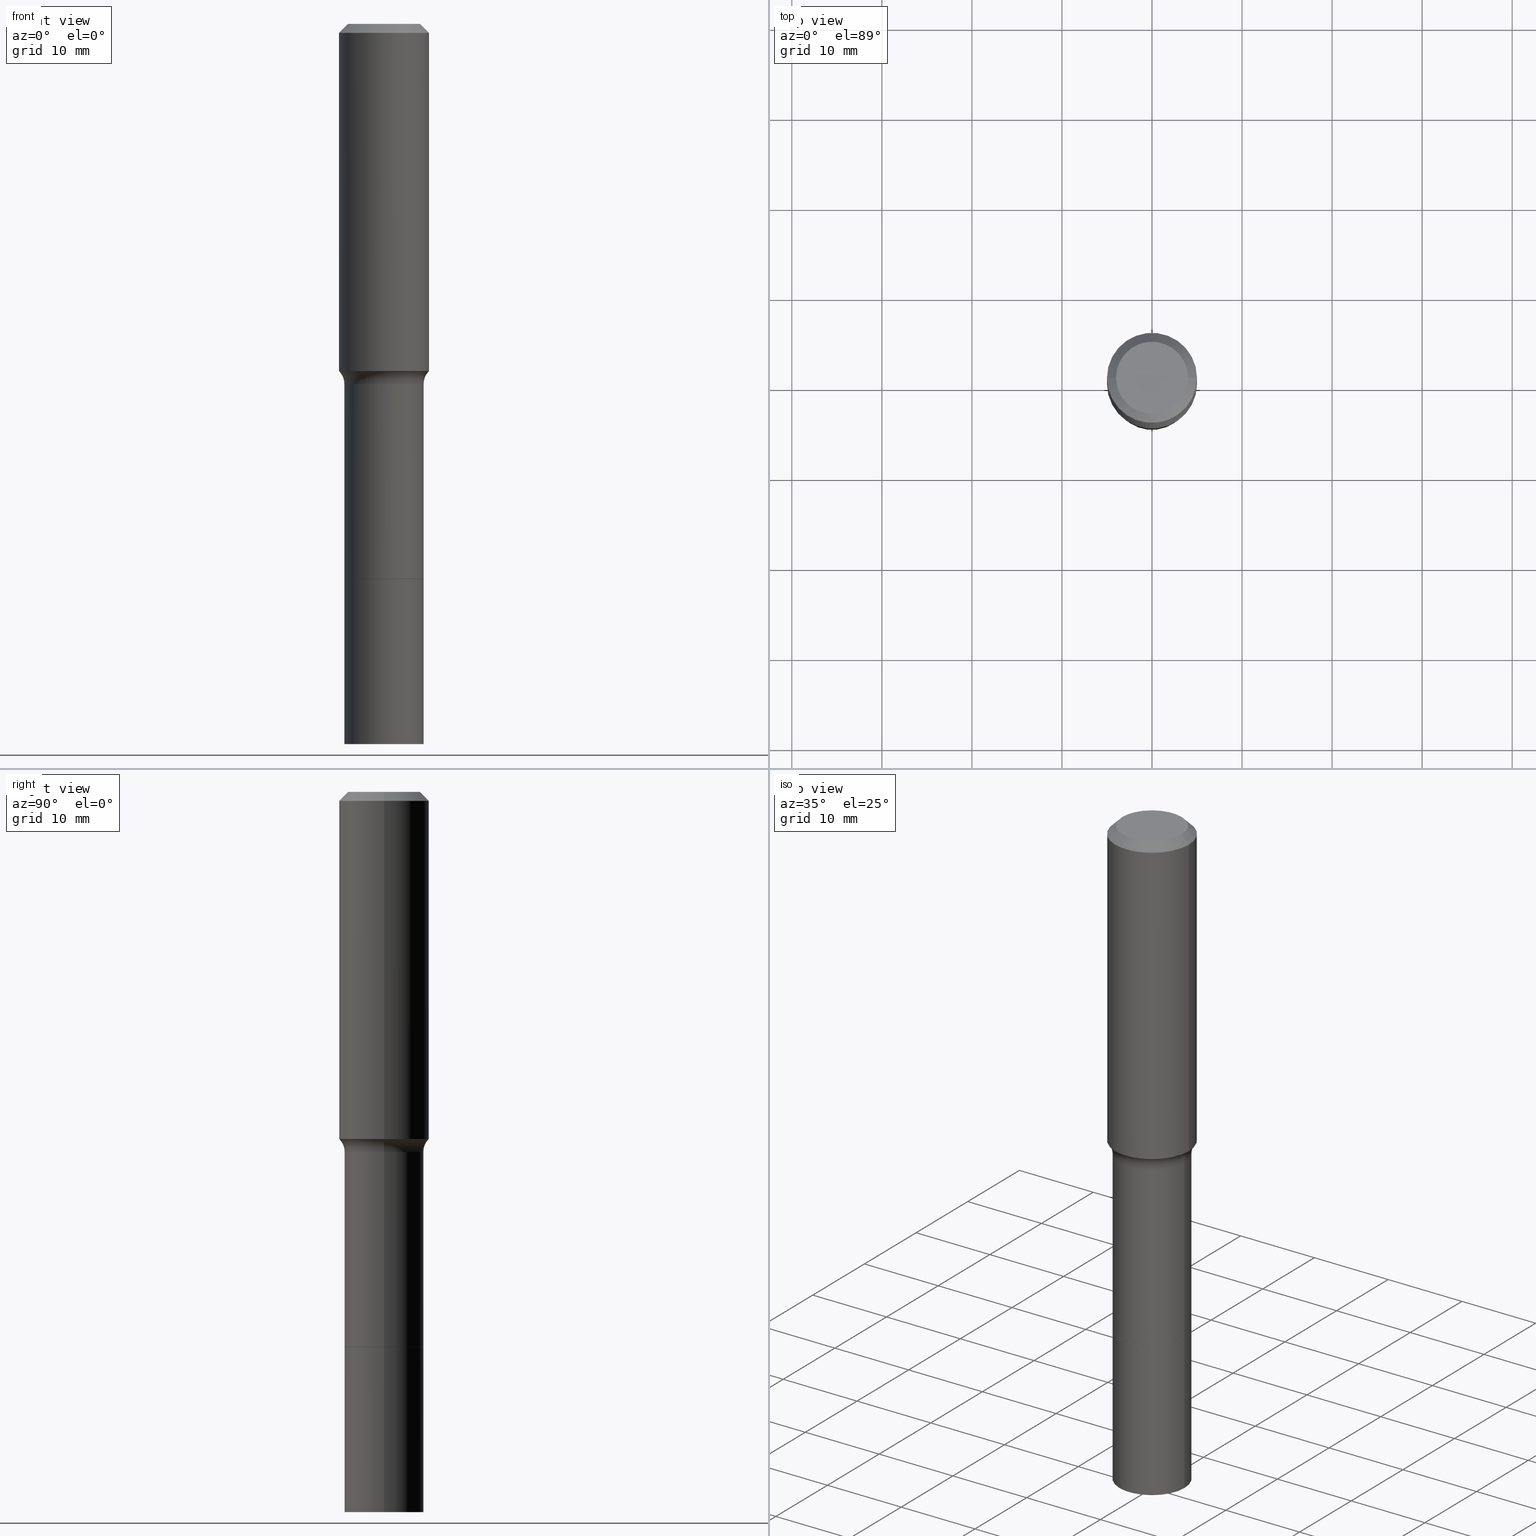
[diagram: canonical four-view strip — front | top / right | iso, engineering-drawing reading convention]
A machine part, canonical four-view strip (front | top / right | iso — engineering-drawing reading convention). The complete STEP part file that produces these views, byte-faithful:
ISO-10303-21;
HEADER;
FILE_DESCRIPTION (( 'STEP AP203' ),
    '1' );
FILE_NAME ('67135.STEP',
    '2025-04-01T15:28:49',
    ( '' ),
    ( '' ),
    'SwSTEP 2.0',
    'SolidWorks 2024',
    '' );
FILE_SCHEMA (( 'CONFIG_CONTROL_DESIGN' ));
ENDSEC;

DATA;
#1 = VERTEX_POINT ( 'NONE', #286 ) ;
#2 = CLOSED_SHELL ( 'NONE', ( #196, #433, #70, #323 ) ) ;
#3 = FACE_OUTER_BOUND ( 'NONE', #153, .T. ) ;
#4 = ORIENTED_EDGE ( 'NONE', *, *, #347, .T. ) ;
#5 = ADVANCED_FACE ( 'NONE', ( #411 ), #449, .T. ) ;
#6 = VERTEX_POINT ( 'NONE', #429 ) ;
#7 = ORIENTED_EDGE ( 'NONE', *, *, #400, .F. ) ;
#8 = CIRCLE ( 'NONE', #252, 0.1732499999999999873 ) ;
#9 = AXIS2_PLACEMENT_3D ( 'NONE', #384, #351, #46 ) ;
#10 = VERTEX_POINT ( 'NONE', #106 ) ;
#11 = AXIS2_PLACEMENT_3D ( 'NONE', #52, #385, #26 ) ;
#12 = DIRECTION ( 'NONE',  ( -2.445468806185136597E-29, 3.491481338843145583E-15, 1.000000000000000000 ) ) ;
#13 = EDGE_LOOP ( 'NONE', ( #110, #496 ) ) ;
#14 = APPROVAL_STATUS ( 'not_yet_approved' ) ;
#15 = CARTESIAN_POINT ( 'NONE',  ( 9.627810689950950651E-31, -1.374596203102556054E-16, -0.03937000000000027977 ) ) ;
#16 =( NAMED_UNIT ( * ) SI_UNIT ( $, .STERADIAN. ) SOLID_ANGLE_UNIT ( ) );
#17 = FACE_OUTER_BOUND ( 'NONE', #516, .T. ) ;
#18 = LINE ( 'NONE', #345, #395 ) ;
#19 = CC_DESIGN_DATE_AND_TIME_ASSIGNMENT ( #254, #369, ( #442 ) ) ;
#20 = DIRECTION ( 'NONE',  ( -2.445468806185136597E-29, 3.491481338843145583E-15, 1.000000000000000000 ) ) ;
#21 = DIRECTION ( 'NONE',  ( 1.000000000000000000, -6.982962677686261189E-15, 0.000000000000000000 ) ) ;
#22 = FACE_OUTER_BOUND ( 'NONE', #471, .T. ) ;
#23 = CARTESIAN_POINT ( 'NONE',  ( 0.000000000000000000, 0.000000000000000000, 0.000000000000000000 ) ) ;
#24 = ADVANCED_BREP_SHAPE_REPRESENTATION ( '67135', ( #74, #176, #11 ), #367 ) ;
#25 = CARTESIAN_POINT ( 'NONE',  ( 0.1574800000000000089, -1.284169937930321189E-15, 3.855188123724205385E-18 ) ) ;
#26 = DIRECTION ( 'NONE',  ( 1.000000000000000000, 0.000000000000000000, 0.000000000000000000 ) ) ;
#27 = CONICAL_SURFACE ( 'NONE', #92, 0.1727499999999999869, 0.7853981633975507526 ) ;
#28 = ADVANCED_FACE ( 'NONE', ( #101 ), #266, .F. ) ;
#29 = DIRECTION ( 'NONE',  ( 2.445468806185136597E-29, -3.491481338843145583E-15, -1.000000000000000000 ) ) ;
#30 = CARTESIAN_POINT ( 'NONE',  ( 5.931729136282667609E-29, -8.468937135497934168E-15, -2.425600000000000200 ) ) ;
#31 = ADVANCED_FACE ( 'NONE', ( #256 ), #71, .T. ) ;
#32 = DIRECTION ( 'NONE',  ( -2.445468806185136597E-29, 3.491481338843145583E-15, 1.000000000000000000 ) ) ;
#33 = VECTOR ( 'NONE', #406, 39.37007874015748143 ) ;
#34 = CIRCLE ( 'NONE', #465, 0.1732500000000001816 ) ;
#35 = EDGE_CURVE ( 'NONE', #10, #251, #8, .T. ) ;
#36 = LOCAL_TIME ( 11, 28, 49.00000000000000000, #342 ) ;
#37 = VERTEX_POINT ( 'NONE', #187 ) ;
#38 = ORIENTED_EDGE ( 'NONE', *, *, #434, .F. ) ;
#39 = CARTESIAN_POINT ( 'NONE',  ( 3.850635182219116347E-29, -5.497686516142417553E-15, -1.574600000000000222 ) ) ;
#40 = ORIENTED_EDGE ( 'NONE', *, *, #55, .F. ) ;
#41 = CARTESIAN_POINT ( 'NONE',  ( 0.000000000000000000, 0.000000000000000000, 0.000000000000000000 ) ) ;
#42 = APPROVAL_DATE_TIME ( #414, #203 ) ;
#43 = ORIENTED_EDGE ( 'NONE', *, *, #354, .F. ) ;
#44 = PERSON_AND_ORGANIZATION ( #90, #116 ) ;
#45 = ADVANCED_FACE ( 'NONE', ( #506 ), #80, .F. ) ;
#46 = DIRECTION ( 'NONE',  ( -1.000000000000000000, 6.982962677686265922E-15, -4.876176775795935793E-29 ) ) ;
#47 = ORIENTED_EDGE ( 'NONE', *, *, #457, .T. ) ;
#48 = CARTESIAN_POINT ( 'NONE',  ( 5.930506401879575929E-29, -8.467191394828513453E-15, -2.425100000000000477 ) ) ;
#49 = APPROVAL_ROLE ( '' ) ;
#50 = CARTESIAN_POINT ( 'NONE',  ( -0.1968500000000001915, -3.900594588805818915E-15, -1.517779260394222174 ) ) ;
#51 = DIRECTION ( 'NONE',  ( -2.445468806185136597E-29, 3.491481338843145583E-15, 1.000000000000000000 ) ) ;
#52 = CARTESIAN_POINT ( 'NONE',  ( 0.000000000000000000, 0.000000000000000000, 0.000000000000000000 ) ) ;
#53 = DIRECTION ( 'NONE',  ( -2.445468806185136597E-29, 3.491481338843145583E-15, 1.000000000000000000 ) ) ;
#54 = DIRECTION ( 'NONE',  ( 1.000000000000000000, -6.982962677686264344E-15, 0.000000000000000000 ) ) ;
#55 = EDGE_CURVE ( 'NONE', #6, #10, #427, .T. ) ;
#56 = AXIS2_PLACEMENT_3D ( 'NONE', #424, #29, #65 ) ;
#57 = EDGE_CURVE ( 'NONE', #517, #366, #285, .T. ) ;
#58 = DIRECTION ( 'NONE',  ( -2.445468806185136597E-29, 3.491481338843145583E-15, 1.000000000000000000 ) ) ;
#59 = DIRECTION ( 'NONE',  ( 1.000000000000000000, -6.982962677686267499E-15, 4.876176775795935793E-29 ) ) ;
#60 = CARTESIAN_POINT ( 'NONE',  ( 9.627810689950950651E-31, -1.374596203102556054E-16, -0.03937000000000027977 ) ) ;
#61 = DIRECTION ( 'NONE',  ( -2.445468806185136877E-29, 3.491481338843145188E-15, 1.000000000000000000 ) ) ;
#62 = DIRECTION ( 'NONE',  ( 1.000000000000000000, -6.982962677686265133E-15, 4.883557194083112340E-29 ) ) ;
#63 = PERSON_AND_ORGANIZATION_ROLE ( 'creator' ) ;
#64 = LINE ( 'NONE', #298, #190 ) ;
#65 = DIRECTION ( 'NONE',  ( -1.000000000000000000, 6.982962677686265922E-15, 0.000000000000000000 ) ) ;
#66 = AXIS2_PLACEMENT_3D ( 'NONE', #229, #391, #191 ) ;
#67 = LINE ( 'NONE', #194, #488 ) ;
#68 = ADVANCED_FACE ( 'NONE', ( #219 ), #103, .T. ) ;
#69 = ORIENTED_EDGE ( 'NONE', *, *, #477, .F. ) ;
#70 = ADVANCED_FACE ( 'NONE', ( #145 ), #315, .T. ) ;
#71 = CONICAL_SURFACE ( 'NONE', #56, 0.1968500000000000250, 0.7853981633974447263 ) ;
#72 = AXIS2_PLACEMENT_3D ( 'NONE', #177, #501, #139 ) ;
#73 = VERTEX_POINT ( 'NONE', #25 ) ;
#74 = MANIFOLD_SOLID_BREP ( 'Body-Move/Copy2[1]', #2 ) ;
#75 = DIRECTION ( 'NONE',  ( 1.000000000000000000, -6.982962677686264344E-15, 0.000000000000000000 ) ) ;
#76 = CARTESIAN_POINT ( 'NONE',  ( 3.717210724986936016E-29, -5.307191752360030282E-15, -1.520040131195000255 ) ) ;
#77 = EDGE_CURVE ( 'NONE', #1, #489, #447, .T. ) ;
#78 = ORIENTED_EDGE ( 'NONE', *, *, #245, .F. ) ;
#79 = ORIENTED_EDGE ( 'NONE', *, *, #77, .F. ) ;
#80 = TOROIDAL_SURFACE ( 'NONE', #371, 0.2532499999999998641, 0.07999999999999996003 ) ;
#81 = CARTESIAN_POINT ( 'NONE',  ( 3.717210724986936016E-29, -5.307191752360030282E-15, -1.520040131195000255 ) ) ;
#82 = VERTEX_POINT ( 'NONE', #306 ) ;
#83 = PRODUCT_DEFINITION_FORMATION_WITH_SPECIFIED_SOURCE ( 'ANY', '', #326, .NOT_KNOWN. ) ;
#84 = VECTOR ( 'NONE', #269, 39.37007874015748143 ) ;
#85 = ADVANCED_FACE ( 'NONE', ( #131 ), #300, .F. ) ;
#86 = CARTESIAN_POINT ( 'NONE',  ( 3.711681835968817620E-29, -5.299297964149577492E-15, -1.517779260394222174 ) ) ;
#87 = ORIENTED_EDGE ( 'NONE', *, *, #162, .F. ) ;
#88 = DIRECTION ( 'NONE',  ( -2.445468806185136597E-29, 3.491481338843145583E-15, 1.000000000000000000 ) ) ;
#89 = ORIENTED_EDGE ( 'NONE', *, *, #313, .T. ) ;
#90 = PERSON ( 'UNSPECIFIED', 'UNSPECIFIED', 'UNSPECIFIED', ('UNSPECIFIED'), ('UNSPECIFIED'), ('UNSPECIFIED') ) ;
#91 = PERSON_AND_ORGANIZATION_ROLE ( 'classification_officer' ) ;
#92 = AXIS2_PLACEMENT_3D ( 'NONE', #30, #193, #418 ) ;
#93 = CARTESIAN_POINT ( 'NONE',  ( -0.1727499999999999869, -7.238825332298250975E-15, -2.425600000000000200 ) ) ;
#94 = EDGE_LOOP ( 'NONE', ( #356, #361 ) ) ;
#95 = SECURITY_CLASSIFICATION_LEVEL ( 'unclassified' ) ;
#96 = DIRECTION ( 'NONE',  ( -2.445468806185136597E-29, 3.491481338843145583E-15, 1.000000000000000000 ) ) ;
#97 = CALENDAR_DATE ( 2025, 1, 4 ) ;
#98 = EDGE_CURVE ( 'NONE', #407, #359, #18, .T. ) ;
#99 = UNCERTAINTY_MEASURE_WITH_UNIT (LENGTH_MEASURE( 1.000000000000000082E-05 ), #493, 'distance_accuracy_value', 'NONE');
#100 = CARTESIAN_POINT ( 'NONE',  ( -0.1732500000000001816, -8.501838090454777193E-15, -3.149600000000000399 ) ) ;
#101 = FACE_OUTER_BOUND ( 'NONE', #94, .T. ) ;
#102 = CARTESIAN_POINT ( 'NONE',  ( -0.1732499999999999873, -8.501838090454778770E-15, -2.425600000000000200 ) ) ;
#103 = CONICAL_SURFACE ( 'NONE', #122, 0.1727499999999999869, 0.7853981633975507526 ) ;
#104 = CIRCLE ( 'NONE', #335, 0.1968500000000001915 ) ;
#105 = CYLINDRICAL_SURFACE ( 'NONE', #146, 0.1968500000000001082 ) ;
#106 = CARTESIAN_POINT ( 'NONE',  ( 0.1732499999999999873, -9.678735419407081106E-15, -2.425600000000000200 ) ) ;
#107 = APPROVAL_PERSON_ORGANIZATION ( #409, #203, #49 ) ;
#108 = CARTESIAN_POINT ( 'NONE',  ( -0.1732499999999999318, 1.231015289704373088E-15, -8.522055043866620619E-30 ) ) ;
#109 = CARTESIAN_POINT ( 'NONE',  ( 7.702248551960706711E-29, -1.099676962482037231E-14, -3.149600000000000399 ) ) ;
#110 = ORIENTED_EDGE ( 'NONE', *, *, #35, .T. ) ;
#111 = CC_DESIGN_PERSON_AND_ORGANIZATION_ASSIGNMENT ( #302, #91, ( #442 ) ) ;
#112 = ORIENTED_EDGE ( 'NONE', *, *, #282, .T. ) ;
#113 = ORIENTED_EDGE ( 'NONE', *, *, #170, .F. ) ;
#114 = CIRCLE ( 'NONE', #297, 0.1968500000000000250 ) ;
#115 = ORIENTED_EDGE ( 'NONE', *, *, #55, .T. ) ;
#116 = ORGANIZATION ( 'UNSPECIFIED', 'UNSPECIFIED', '' ) ;
#117 = AXIS2_PLACEMENT_3D ( 'NONE', #130, #421, #218 ) ;
#118 = ORIENTED_EDGE ( 'NONE', *, *, #330, .T. ) ;
#119 = ADVANCED_FACE ( 'NONE', ( #264 ), #304, .T. ) ;
#120 = ORIENTED_EDGE ( 'NONE', *, *, #57, .T. ) ;
#121 = COORDINATED_UNIVERSAL_TIME_OFFSET ( 5, 0, .BEHIND. ) ;
#122 = AXIS2_PLACEMENT_3D ( 'NONE', #311, #341, #21 ) ;
#123 = APPROVAL ( #417, 'UNSPECIFIED' ) ;
#124 = ORIENTED_EDGE ( 'NONE', *, *, #438, .T. ) ;
#125 = ORIENTED_EDGE ( 'NONE', *, *, #137, .F. ) ;
#126 = DATE_AND_TIME ( #167, #36 ) ;
#127 = LINE ( 'NONE', #454, #235 ) ;
#128 = EDGE_LOOP ( 'NONE', ( #278, #4 ) ) ;
#129 = DATE_TIME_ROLE ( 'creation_date' ) ;
#130 = CARTESIAN_POINT ( 'NONE',  ( 7.702248551960706711E-29, -1.099676962482037231E-14, -3.149600000000000399 ) ) ;
#131 = FACE_OUTER_BOUND ( 'NONE', #128, .T. ) ;
#132 = PERSON_AND_ORGANIZATION_ROLE ( 'creator' ) ;
#133 = CC_DESIGN_PERSON_AND_ORGANIZATION_ASSIGNMENT ( #44, #132, ( #83 ) ) ;
#134 = LINE ( 'NONE', #509, #160 ) ;
#135 = CARTESIAN_POINT ( 'NONE',  ( 5.930506401879575929E-29, -8.467191394828513453E-15, -2.425100000000000477 ) ) ;
#136 = CARTESIAN_POINT ( 'NONE',  ( 0.2532499999999998641, -7.266121814266463777E-15, -1.574600000000000222 ) ) ;
#137 = EDGE_CURVE ( 'NONE', #359, #320, #114, .T. ) ;
#138 = DIRECTION ( 'NONE',  ( -2.445468806185136597E-29, 3.491481338843145583E-15, 1.000000000000000000 ) ) ;
#139 = DIRECTION ( 'NONE',  ( 1.000000000000000000, -6.982962677686265922E-15, 4.876223630392693006E-29 ) ) ;
#140 = CC_DESIGN_PERSON_AND_ORGANIZATION_ASSIGNMENT ( #307, #63, ( #463 ) ) ;
#141 = CARTESIAN_POINT ( 'NONE',  ( 3.717210724986936016E-29, -5.307191752360030282E-15, -1.520040131195000255 ) ) ;
#142 = CARTESIAN_POINT ( 'NONE',  ( 5.931729136282667609E-29, -8.468937135497934168E-15, -2.425600000000000200 ) ) ;
#143 = LOCAL_TIME ( 11, 28, 49.00000000000000000, #383 ) ;
#144 = DIRECTION ( 'NONE',  ( -2.445468806185136597E-29, 3.491481338843145583E-15, 1.000000000000000000 ) ) ;
#145 = FACE_OUTER_BOUND ( 'NONE', #324, .T. ) ;
#146 = AXIS2_PLACEMENT_3D ( 'NONE', #23, #12, #348 ) ;
#147 = ORIENTED_EDGE ( 'NONE', *, *, #434, .T. ) ;
#148 = ADVANCED_FACE ( 'NONE', ( #430 ), #425, .T. ) ;
#149 = AXIS2_PLACEMENT_3D ( 'NONE', #462, #260, #221 ) ;
#150 = CIRCLE ( 'NONE', #154, 0.07999999999999996003 ) ;
#151 = ORIENTED_EDGE ( 'NONE', *, *, #35, .F. ) ;
#152 = CC_DESIGN_PERSON_AND_ORGANIZATION_ASSIGNMENT ( #500, #182, ( #326 ) ) ;
#153 = EDGE_LOOP ( 'NONE', ( #450, #118, #151, #40 ) ) ;
#154 = AXIS2_PLACEMENT_3D ( 'NONE', #343, #502, #255 ) ;
#155 = LINE ( 'NONE', #241, #33 ) ;
#156 = CARTESIAN_POINT ( 'NONE',  ( 0.1732499999999999873, -9.676989678737658813E-15, -2.425100000000000477 ) ) ;
#157 = ORIENTED_EDGE ( 'NONE', *, *, #347, .F. ) ;
#158 = PRODUCT_DEFINITION_SHAPE ( 'NONE', 'NONE',  #463 ) ;
#159 = ORIENTED_EDGE ( 'NONE', *, *, #477, .T. ) ;
#160 = VECTOR ( 'NONE', #61, 39.37007874015748143 ) ;
#161 = ORIENTED_EDGE ( 'NONE', *, *, #330, .F. ) ;
#162 = EDGE_CURVE ( 'NONE', #432, #407, #67, .T. ) ;
#163 = ORIENTED_EDGE ( 'NONE', *, *, #172, .F. ) ;
#164 = PERSON_AND_ORGANIZATION_ROLE ( 'design_supplier' ) ;
#165 = CIRCLE ( 'NONE', #309, 0.1574800000000000089 ) ;
#166 = ORIENTED_EDGE ( 'NONE', *, *, #494, .T. ) ;
#167 = CALENDAR_DATE ( 2025, 1, 4 ) ;
#168 = CARTESIAN_POINT ( 'NONE',  ( 0.1947417038704663539, -6.667065802276527587E-15, -1.520040131195000255 ) ) ;
#169 = ORIENTED_EDGE ( 'NONE', *, *, #98, .F. ) ;
#170 = EDGE_CURVE ( 'NONE', #37, #82, #198, .T. ) ;
#171 = CALENDAR_DATE ( 2025, 1, 4 ) ;
#172 = EDGE_CURVE ( 'NONE', #517, #489, #155, .T. ) ;
#173 = CARTESIAN_POINT ( 'NONE',  ( -0.1947417038704663539, -3.923468722012986135E-15, -1.520040131195000255 ) ) ;
#174 = DIRECTION ( 'NONE',  ( 1.000000000000000000, -6.982962677686261189E-15, 0.000000000000000000 ) ) ;
#175 = APPROVAL_ROLE ( '' ) ;
#176 = MANIFOLD_SOLID_BREP ( 'Body-Move/Copy2[2]', #470 ) ;
#177 = CARTESIAN_POINT ( 'NONE',  ( -9.427742298522567634E-47, 1.346031739168368355E-32, 3.855188123715870730E-18 ) ) ;
#178 = CARTESIAN_POINT ( 'NONE',  ( 0.1968500000000000250, -1.512055823412797189E-15, -0.03937000000000027977 ) ) ;
#179 = CARTESIAN_POINT ( 'NONE',  ( 5.931729136282667609E-29, -8.468937135497934168E-15, -2.425600000000000200 ) ) ;
#180 = CARTESIAN_POINT ( 'NONE',  ( 0.1947417038704664649, -6.667065802276528376E-15, -1.520040131195000255 ) ) ;
#181 = CARTESIAN_POINT ( 'NONE',  ( 5.931729136282667609E-29, -8.468937135497934168E-15, -2.425600000000000200 ) ) ;
#182 = PERSON_AND_ORGANIZATION_ROLE ( 'design_owner' ) ;
#183 = AXIS2_PLACEMENT_3D ( 'NONE', #505, #20, #54 ) ;
#184 = AXIS2_PLACEMENT_3D ( 'NONE', #141, #310, #358 ) ;
#185 = EDGE_CURVE ( 'NONE', #366, #517, #382, .T. ) ;
#186 = FACE_OUTER_BOUND ( 'NONE', #446, .T. ) ;
#187 = CARTESIAN_POINT ( 'NONE',  ( 0.1732499999999998763, -6.707484800051562914E-15, -1.574600000000000222 ) ) ;
#188 = LENGTH_MEASURE_WITH_UNIT ( LENGTH_MEASURE( 0.02539999999999999897 ), #204 );
#189 = CIRCLE ( 'NONE', #265, 0.1947417038704664649 ) ;
#190 = VECTOR ( 'NONE', #353, 39.37007874015748143 ) ;
#191 = DIRECTION ( 'NONE',  ( -1.000000000000000000, 6.982962677686265922E-15, 0.000000000000000000 ) ) ;
#192 = DIRECTION ( 'NONE',  ( -2.445468806185136877E-29, 3.491481338843145188E-15, 1.000000000000000000 ) ) ;
#193 = DIRECTION ( 'NONE',  ( -2.445468806185136597E-29, 3.491481338843145583E-15, 1.000000000000000000 ) ) ;
#194 = CARTESIAN_POINT ( 'NONE',  ( -0.1947417038704664649, -3.923468722012985346E-15, -1.520040131195000255 ) ) ;
#195 = ORIENTED_EDGE ( 'NONE', *, *, #170, .T. ) ;
#196 = ADVANCED_FACE ( 'NONE', ( #3 ), #274, .T. ) ;
#197 = ORIENTED_EDGE ( 'NONE', *, *, #316, .F. ) ;
#198 = CIRCLE ( 'NONE', #431, 0.1732499999999998763 ) ;
#199 = CC_DESIGN_APPROVAL ( #291, ( #463 ) ) ;
#200 = ADVANCED_FACE ( 'NONE', ( #439 ), #213, .T. ) ;
#201 = CARTESIAN_POINT ( 'NONE',  ( -0.1574800000000000089, 1.168406772637159618E-15, 3.855188123707939751E-18 ) ) ;
#202 = ORIENTED_EDGE ( 'NONE', *, *, #360, .F. ) ;
#203 = APPROVAL ( #485, 'UNSPECIFIED' ) ;
#204 =( LENGTH_UNIT ( ) NAMED_UNIT ( * ) SI_UNIT ( $, .METRE. ) );
#205 = EDGE_LOOP ( 'NONE', ( #394, #47, #113, #202 ) ) ;
#206 = ORIENTED_EDGE ( 'NONE', *, *, #245, .T. ) ;
#207 = CALENDAR_DATE ( 2025, 1, 4 ) ;
#208 = AXIS2_PLACEMENT_3D ( 'NONE', #15, #458, #377 ) ;
#209 = DIRECTION ( 'NONE',  ( -2.445468806185136597E-29, 3.491481338843145583E-15, 1.000000000000000000 ) ) ;
#210 = SHAPE_DEFINITION_REPRESENTATION ( #158, #24 ) ;
#211 = DIRECTION ( 'NONE',  ( 1.000000000000000000, -6.982962677686266711E-15, 0.000000000000000000 ) ) ;
#212 = ORIENTED_EDGE ( 'NONE', *, *, #258, .T. ) ;
#213 = CONICAL_SURFACE ( 'NONE', #328, 0.1947417038704664649, 0.7504915783575295540 ) ;
#214 = EDGE_LOOP ( 'NONE', ( #87, #281, #232, #69 ) ) ;
#215 = FACE_OUTER_BOUND ( 'NONE', #13, .T. ) ;
#216 = CARTESIAN_POINT ( 'NONE',  ( 5.931729136282667609E-29, -8.468937135497934168E-15, -2.425600000000000200 ) ) ;
#217 = APPLICATION_PROTOCOL_DEFINITION ( 'international standard', 'config_control_design', 1994, #363 ) ;
#218 = DIRECTION ( 'NONE',  ( -1.000000000000000000, 6.982962677686265922E-15, -4.876176775795935793E-29 ) ) ;
#219 = FACE_OUTER_BOUND ( 'NONE', #277, .T. ) ;
#220 = AXIS2_PLACEMENT_3D ( 'NONE', #135, #466, #468 ) ;
#221 = DIRECTION ( 'NONE',  ( 1.000000000000000000, -6.982962677686266711E-15, 4.876176775795935793E-29 ) ) ;
#222 = CC_DESIGN_DATE_AND_TIME_ASSIGNMENT ( #497, #129, ( #463 ) ) ;
#223 = MECHANICAL_CONTEXT ( 'NONE', #363, 'mechanical' ) ;
#224 = CARTESIAN_POINT ( 'NONE',  ( -0.1727499999999999869, -7.241474559472361387E-15, -2.425600000000000200 ) ) ;
#225 = DIRECTION ( 'NONE',  ( -2.445468806185136877E-29, 3.491481338843145188E-15, 1.000000000000000000 ) ) ;
#226 = APPROVAL_DATE_TIME ( #253, #291 ) ;
#227 = AXIS2_PLACEMENT_3D ( 'NONE', #303, #88, #415 ) ;
#228 = DIRECTION ( 'NONE',  ( -2.445468806185136597E-29, 3.491481338843145583E-15, 1.000000000000000000 ) ) ;
#229 = CARTESIAN_POINT ( 'NONE',  ( 9.627810689950950651E-31, -1.374596203102556054E-16, -0.03937000000000027977 ) ) ;
#230 = CC_DESIGN_SECURITY_CLASSIFICATION ( #442, ( #83 ) ) ;
#231 = PRODUCT_RELATED_PRODUCT_CATEGORY ( 'detail', '', ( #326 ) ) ;
#232 = ORIENTED_EDGE ( 'NONE', *, *, #322, .T. ) ;
#233 = AXIS2_PLACEMENT_3D ( 'NONE', #181, #96, #387 ) ;
#234 = DIRECTION ( 'NONE',  ( -2.445468806185136597E-29, 3.491481338843145583E-15, 1.000000000000000000 ) ) ;
#235 = VECTOR ( 'NONE', #225, 39.37007874015748143 ) ;
#236 = DIRECTION ( 'NONE',  ( 1.000000000000000000, -6.982962677686265133E-15, 0.000000000000000000 ) ) ;
#237 = ORIENTED_EDGE ( 'NONE', *, *, #282, .F. ) ;
#238 = CC_DESIGN_APPROVAL ( #123, ( #83 ) ) ;
#239 = DIRECTION ( 'NONE',  ( 1.000000000000000000, -6.982962677686269866E-15, 0.000000000000000000 ) ) ;
#240 = CARTESIAN_POINT ( 'NONE',  ( 0.1727499999999999869, -9.675243938068236521E-15, -2.425600000000000200 ) ) ;
#241 = CARTESIAN_POINT ( 'NONE',  ( 0.1727499999999999869, -9.675243938068236521E-15, -2.425600000000000200 ) ) ;
#242 = ORIENTED_EDGE ( 'NONE', *, *, #438, .F. ) ;
#243 = AXIS2_PLACEMENT_3D ( 'NONE', #257, #459, #422 ) ;
#244 = ORIENTED_EDGE ( 'NONE', *, *, #316, .T. ) ;
#245 = EDGE_CURVE ( 'NONE', #82, #37, #334, .T. ) ;
#246 = ORIENTED_EDGE ( 'NONE', *, *, #494, .F. ) ;
#247 = APPROVAL_DATE_TIME ( #126, #123 ) ;
#248 = CIRCLE ( 'NONE', #208, 0.1968500000000000250 ) ;
#249 = VERTEX_POINT ( 'NONE', #504 ) ;
#250 = CYLINDRICAL_SURFACE ( 'NONE', #290, 0.1732499999999999318 ) ;
#251 = VERTEX_POINT ( 'NONE', #102 ) ;
#252 = AXIS2_PLACEMENT_3D ( 'NONE', #142, #138, #416 ) ;
#253 = DATE_AND_TIME ( #293, #143 ) ;
#254 = DATE_AND_TIME ( #97, #393 ) ;
#255 = DIRECTION ( 'NONE',  ( -1.000000000000000000, 7.105427357601001859E-15, 0.000000000000000000 ) ) ;
#256 = FACE_OUTER_BOUND ( 'NONE', #478, .T. ) ;
#257 = CARTESIAN_POINT ( 'NONE',  ( -4.713871149261283817E-47, 6.730158695841841775E-33, 1.927594061857935365E-18 ) ) ;
#258 = EDGE_CURVE ( 'NONE', #249, #320, #64, .T. ) ;
#259 = PLANE ( 'NONE',  #9 ) ;
#260 = DIRECTION ( 'NONE',  ( -2.445468806185136597E-29, 3.491481338843145583E-15, 1.000000000000000000 ) ) ;
#261 = AXIS2_PLACEMENT_3D ( 'NONE', #179, #499, #174 ) ;
#262 = CIRCLE ( 'NONE', #372, 0.1732499999999999873 ) ;
#263 = DIRECTION ( 'NONE',  ( 0.7071067811865450192, -7.319954787623246579E-15, -0.7071067811865500152 ) ) ;
#264 = FACE_OUTER_BOUND ( 'NONE', #482, .T. ) ;
#265 = AXIS2_PLACEMENT_3D ( 'NONE', #76, #518, #325 ) ;
#266 = PLANE ( 'NONE',  #437 ) ;
#267 = EDGE_CURVE ( 'NONE', #251, #10, #275, .T. ) ;
#268 = DIRECTION ( 'NONE',  ( 1.000000000000000000, -6.982962677686265922E-15, 0.000000000000000000 ) ) ;
#269 = DIRECTION ( 'NONE',  ( -2.445468806185136877E-29, 3.491481338843145188E-15, 1.000000000000000000 ) ) ;
#270 = ADVANCED_FACE ( 'NONE', ( #22 ), #27, .T. ) ;
#271 = AXIS2_PLACEMENT_3D ( 'NONE', #511, #228, #467 ) ;
#272 = ORIENTED_EDGE ( 'NONE', *, *, #77, .T. ) ;
#273 = CIRCLE ( 'NONE', #184, 0.1947417038704664649 ) ;
#274 = CYLINDRICAL_SURFACE ( 'NONE', #515, 0.1732500000000000984 ) ;
#275 = CIRCLE ( 'NONE', #271, 0.1732499999999999873 ) ;
#276 = CARTESIAN_POINT ( 'NONE',  ( -0.1968500000000000250, 1.237136582792286225E-15, -0.03937000000000027977 ) ) ;
#277 = EDGE_LOOP ( 'NONE', ( #120, #112, #472, #163 ) ) ;
#278 = ORIENTED_EDGE ( 'NONE', *, *, #283, .T. ) ;
#279 = CIRCLE ( 'NONE', #420, 0.07999999999999996003 ) ;
#280 = DIRECTION ( 'NONE',  ( -2.445468806185136597E-29, 3.491481338843145583E-15, 1.000000000000000000 ) ) ;
#281 = ORIENTED_EDGE ( 'NONE', *, *, #441, .T. ) ;
#282 = EDGE_CURVE ( 'NONE', #366, #1, #380, .T. ) ;
#283 = EDGE_CURVE ( 'NONE', #292, #73, #479, .T. ) ;
#284 = CARTESIAN_POINT ( 'NONE',  ( 5.931729136282667609E-29, -8.468937135497934168E-15, -2.425600000000000200 ) ) ;
#285 = CIRCLE ( 'NONE', #261, 0.1727499999999999869 ) ;
#286 = CARTESIAN_POINT ( 'NONE',  ( -0.1732499999999999873, -5.751423665781092218E-15, -2.425100000000000477 ) ) ;
#287 = ORIENTED_EDGE ( 'NONE', *, *, #512, .T. ) ;
#288 = EDGE_CURVE ( 'NONE', #489, #1, #262, .T. ) ;
#289 = CIRCLE ( 'NONE', #355, 0.1968500000000001915 ) ;
#290 = AXIS2_PLACEMENT_3D ( 'NONE', #340, #412, #338 ) ;
#291 = APPROVAL ( #14, 'UNSPECIFIED' ) ;
#292 = VERTEX_POINT ( 'NONE', #201 ) ;
#293 = CALENDAR_DATE ( 2025, 1, 4 ) ;
#294 = PERSON_AND_ORGANIZATION ( #90, #116 ) ;
#295 = CARTESIAN_POINT ( 'NONE',  ( -0.1968500000000000250, -1.319675416886158354E-15, -0.03937000000000027977 ) ) ;
#296 = EDGE_LOOP ( 'NONE', ( #242, #455, #166, #370 ) ) ;
#297 = AXIS2_PLACEMENT_3D ( 'NONE', #60, #53, #268 ) ;
#298 = CARTESIAN_POINT ( 'NONE',  ( 0.1968500000000001082, -1.374596203102542397E-15, 9.598753983154305062E-30 ) ) ;
#299 = FACE_OUTER_BOUND ( 'NONE', #214, .T. ) ;
#300 = PLANE ( 'NONE',  #243 ) ;
#301 = PERSON_AND_ORGANIZATION ( #90, #116 ) ;
#302 = PERSON_AND_ORGANIZATION ( #90, #116 ) ;
#303 = CARTESIAN_POINT ( 'NONE',  ( 3.850635182219116347E-29, -5.497686516142417553E-15, -1.574600000000000222 ) ) ;
#304 = CYLINDRICAL_SURFACE ( 'NONE', #149, 0.1968500000000001082 ) ;
#305 = LINE ( 'NONE', #423, #483 ) ;
#306 = CARTESIAN_POINT ( 'NONE',  ( -0.1732499999999998763, -5.751423665781093007E-15, -1.574600000000000222 ) ) ;
#307 = PERSON_AND_ORGANIZATION ( #90, #116 ) ;
#308 = AXIS2_PLACEMENT_3D ( 'NONE', #41, #209, #59 ) ;
#309 = AXIS2_PLACEMENT_3D ( 'NONE', #374, #58, #386 ) ;
#310 = DIRECTION ( 'NONE',  ( -2.445468806185136597E-29, 3.491481338843145583E-15, 1.000000000000000000 ) ) ;
#311 = CARTESIAN_POINT ( 'NONE',  ( 5.931729136282667609E-29, -8.468937135497934168E-15, -2.425600000000000200 ) ) ;
#312 = LOCAL_TIME ( 11, 28, 49.00000000000000000, #376 ) ;
#313 = EDGE_CURVE ( 'NONE', #435, #6, #34, .T. ) ;
#314 = LINE ( 'NONE', #108, #84 ) ;
#315 = CYLINDRICAL_SURFACE ( 'NONE', #233, 0.1732500000000000984 ) ;
#316 = EDGE_CURVE ( 'NONE', #249, #407, #104, .T. ) ;
#317 = CONICAL_SURFACE ( 'NONE', #183, 0.1947417038704664649, 0.7504915783575295540 ) ;
#318 = DIRECTION ( 'NONE',  ( 1.000000000000000000, -6.982962677686267499E-15, 0.000000000000000000 ) ) ;
#319 = VERTEX_POINT ( 'NONE', #168 ) ;
#320 = VERTEX_POINT ( 'NONE', #178 ) ;
#321 = APPROVAL_PERSON_ORGANIZATION ( #301, #291, #507 ) ;
#322 = EDGE_CURVE ( 'NONE', #319, #249, #426, .T. ) ;
#323 = ADVANCED_FACE ( 'NONE', ( #215 ), #259, .F. ) ;
#324 = EDGE_LOOP ( 'NONE', ( #161, #89, #115, #398 ) ) ;
#325 = DIRECTION ( 'NONE',  ( 1.000000000000000000, -6.982962677686264344E-15, 0.000000000000000000 ) ) ;
#326 = PRODUCT ( '67135', '67135', '', ( #223 ) ) ;
#327 = ORIENTED_EDGE ( 'NONE', *, *, #448, .F. ) ;
#328 = AXIS2_PLACEMENT_3D ( 'NONE', #81, #445, #75 ) ;
#329 = CARTESIAN_POINT ( 'NONE',  ( 5.931729136282667609E-29, -8.468937135497934168E-15, -2.425600000000000200 ) ) ;
#330 = EDGE_CURVE ( 'NONE', #435, #251, #127, .T. ) ;
#331 = ORIENTED_EDGE ( 'NONE', *, *, #354, .T. ) ;
#332 = DESIGN_CONTEXT ( 'detailed design', #469, 'design' ) ;
#333 = ORIENTED_EDGE ( 'NONE', *, *, #512, .F. ) ;
#334 = CIRCLE ( 'NONE', #510, 0.1732499999999998763 ) ;
#335 = AXIS2_PLACEMENT_3D ( 'NONE', #86, #410, #211 ) ;
#336 = EDGE_LOOP ( 'NONE', ( #327, #484 ) ) ;
#337 = ORIENTED_EDGE ( 'NONE', *, *, #98, .T. ) ;
#338 = DIRECTION ( 'NONE',  ( 1.000000000000000000, -6.982962677686267499E-15, 4.876176775795935793E-29 ) ) ;
#339 = ORIENTED_EDGE ( 'NONE', *, *, #457, .F. ) ;
#340 = CARTESIAN_POINT ( 'NONE',  ( 0.000000000000000000, 0.000000000000000000, 0.000000000000000000 ) ) ;
#341 = DIRECTION ( 'NONE',  ( -2.445468806185136597E-29, 3.491481338843145583E-15, 1.000000000000000000 ) ) ;
#342 = COORDINATED_UNIVERSAL_TIME_OFFSET ( 5, 0, .BEHIND. ) ;
#343 = CARTESIAN_POINT ( 'NONE',  ( -0.2532499999999998641, -3.698237037829964798E-15, -1.574600000000000222 ) ) ;
#344 = CC_DESIGN_APPROVAL ( #203, ( #442 ) ) ;
#345 = CARTESIAN_POINT ( 'NONE',  ( -0.1968500000000001082, 1.398703375343757985E-15, -9.682923725166787881E-30 ) ) ;
#346 =( NAMED_UNIT ( * ) PLANE_ANGLE_UNIT ( ) SI_UNIT ( $, .RADIAN. ) );
#347 = EDGE_CURVE ( 'NONE', #73, #292, #165, .T. ) ;
#348 = DIRECTION ( 'NONE',  ( 1.000000000000000000, -6.982962677686266711E-15, 4.876176775795935793E-29 ) ) ;
#349 = DIRECTION ( 'NONE',  ( -2.445468806185136877E-29, 3.491481338843145188E-15, 1.000000000000000000 ) ) ;
#350 = APPLICATION_PROTOCOL_DEFINITION ( 'international standard', 'config_control_design', 1994, #469 ) ;
#351 = DIRECTION ( 'NONE',  ( 2.438088387897960049E-29, -3.491481338843145188E-15, -1.000000000000000000 ) ) ;
#352 = CARTESIAN_POINT ( 'NONE',  ( 0.1732500000000000984, -9.678735419407081106E-15, -2.425600000000000200 ) ) ;
#353 = DIRECTION ( 'NONE',  ( -2.445468806185136877E-29, 3.491481338843145188E-15, 1.000000000000000000 ) ) ;
#354 = EDGE_CURVE ( 'NONE', #432, #82, #150, .T. ) ;
#355 = AXIS2_PLACEMENT_3D ( 'NONE', #392, #32, #402 ) ;
#356 = ORIENTED_EDGE ( 'NONE', *, *, #57, .F. ) ;
#357 = VECTOR ( 'NONE', #192, 39.37007874015748143 ) ;
#358 = DIRECTION ( 'NONE',  ( 1.000000000000000000, -6.982962677686264344E-15, 0.000000000000000000 ) ) ;
#359 = VERTEX_POINT ( 'NONE', #295 ) ;
#360 = EDGE_CURVE ( 'NONE', #489, #37, #134, .T. ) ;
#361 = ORIENTED_EDGE ( 'NONE', *, *, #185, .F. ) ;
#362 = CIRCLE ( 'NONE', #474, 0.1732500000000001816 ) ;
#363 = APPLICATION_CONTEXT ( 'configuration controlled 3d designs of mechanical parts and assemblies' ) ;
#364 = DIRECTION ( 'NONE',  ( 1.000000000000000000, -6.982962677686261189E-15, 0.000000000000000000 ) ) ;
#365 = ADVANCED_FACE ( 'NONE', ( #299 ), #317, .T. ) ;
#366 = VERTEX_POINT ( 'NONE', #93 ) ;
#367 =( GEOMETRIC_REPRESENTATION_CONTEXT ( 3 ) GLOBAL_UNCERTAINTY_ASSIGNED_CONTEXT ( ( #99 ) ) GLOBAL_UNIT_ASSIGNED_CONTEXT ( ( #493, #346, #16 ) ) REPRESENTATION_CONTEXT ( 'NONE', 'WORKASPACE' ) );
#368 = ORIENTED_EDGE ( 'NONE', *, *, #400, .T. ) ;
#369 = DATE_TIME_ROLE ( 'classification_date' ) ;
#370 = ORIENTED_EDGE ( 'NONE', *, *, #137, .T. ) ;
#371 = AXIS2_PLACEMENT_3D ( 'NONE', #389, #51, #62 ) ;
#372 = AXIS2_PLACEMENT_3D ( 'NONE', #48, #379, #236 ) ;
#373 = ORIENTED_EDGE ( 'NONE', *, *, #360, .T. ) ;
#374 = CARTESIAN_POINT ( 'NONE',  ( -9.427742298522567634E-47, 1.346031739168368355E-32, 3.855188123715870730E-18 ) ) ;
#375 = EDGE_LOOP ( 'NONE', ( #287, #492, #197, #408 ) ) ;
#376 = COORDINATED_UNIVERSAL_TIME_OFFSET ( 5, 0, .BEHIND. ) ;
#377 = DIRECTION ( 'NONE',  ( 1.000000000000000000, -6.982962677686265922E-15, 0.000000000000000000 ) ) ;
#378 = DIRECTION ( 'NONE',  ( -2.438088387897960049E-29, 3.491481338843145188E-15, 1.000000000000000000 ) ) ;
#379 = DIRECTION ( 'NONE',  ( -2.445468806185136597E-29, 3.491481338843145583E-15, 1.000000000000000000 ) ) ;
#380 = LINE ( 'NONE', #224, #390 ) ;
#381 = DIRECTION ( 'NONE',  ( -6.982962677686266711E-15, -1.000000000000000000, 3.491481338843145583E-15 ) ) ;
#382 = CIRCLE ( 'NONE', #487, 0.1727499999999999869 ) ;
#383 = COORDINATED_UNIVERSAL_TIME_OFFSET ( 5, 0, .BEHIND. ) ;
#384 = CARTESIAN_POINT ( 'NONE',  ( 5.931729136282667609E-29, -8.468937135497934168E-15, -2.425600000000000200 ) ) ;
#385 = DIRECTION ( 'NONE',  ( 0.000000000000000000, 0.000000000000000000, 1.000000000000000000 ) ) ;
#386 = DIRECTION ( 'NONE',  ( 1.000000000000000000, -6.982962677686265922E-15, 4.876223630392693006E-29 ) ) ;
#387 = DIRECTION ( 'NONE',  ( 1.000000000000000000, -6.982962677686265133E-15, 0.000000000000000000 ) ) ;
#388 = ADVANCED_FACE ( 'NONE', ( #186 ), #105, .T. ) ;
#389 = CARTESIAN_POINT ( 'NONE',  ( 3.850635182219116347E-29, -5.497686516142417553E-15, -1.574600000000000222 ) ) ;
#390 = VECTOR ( 'NONE', #508, 39.37007874015748143 ) ;
#391 = DIRECTION ( 'NONE',  ( 2.445468806185136597E-29, -3.491481338843145583E-15, -1.000000000000000000 ) ) ;
#392 = CARTESIAN_POINT ( 'NONE',  ( 3.711681835968817620E-29, -5.299297964149577492E-15, -1.517779260394222174 ) ) ;
#393 = LOCAL_TIME ( 11, 28, 49.00000000000000000, #460 ) ;
#394 = ORIENTED_EDGE ( 'NONE', *, *, #288, .T. ) ;
#395 = VECTOR ( 'NONE', #349, 39.37007874015748143 ) ;
#396 = VECTOR ( 'NONE', #464, 39.37007874015748143 ) ;
#397 = DIRECTION ( 'NONE',  ( 1.000000000000000000, -6.982962677686265133E-15, 0.000000000000000000 ) ) ;
#398 = ORIENTED_EDGE ( 'NONE', *, *, #267, .F. ) ;
#399 = LOCAL_TIME ( 11, 28, 49.00000000000000000, #121 ) ;
#400 = EDGE_CURVE ( 'NONE', #320, #359, #248, .T. ) ;
#401 = DIRECTION ( 'NONE',  ( -2.445468806185136597E-29, 3.491481338843145583E-15, 1.000000000000000000 ) ) ;
#402 = DIRECTION ( 'NONE',  ( 1.000000000000000000, -6.982962677686266711E-15, 0.000000000000000000 ) ) ;
#403 = ADVANCED_FACE ( 'NONE', ( #452 ), #451, .F. ) ;
#404 = DIRECTION ( 'NONE',  ( -2.445468806185136597E-29, 3.491481338843145583E-15, 1.000000000000000000 ) ) ;
#405 = ORIENTED_EDGE ( 'NONE', *, *, #258, .F. ) ;
#406 = DIRECTION ( 'NONE',  ( 0.7071067811866199593, -2.468850131083015945E-15, 0.7071067811864750752 ) ) ;
#407 = VERTEX_POINT ( 'NONE', #50 ) ;
#408 = ORIENTED_EDGE ( 'NONE', *, *, #322, .F. ) ;
#409 = PERSON_AND_ORGANIZATION ( #90, #116 ) ;
#410 = DIRECTION ( 'NONE',  ( -2.445468806185136597E-29, 3.491481338843145583E-15, 1.000000000000000000 ) ) ;
#411 = FACE_OUTER_BOUND ( 'NONE', #205, .T. ) ;
#412 = DIRECTION ( 'NONE',  ( -2.445468806185136597E-29, 3.491481338843145583E-15, 1.000000000000000000 ) ) ;
#413 = ORIENTED_EDGE ( 'NONE', *, *, #172, .T. ) ;
#414 = DATE_AND_TIME ( #207, #399 ) ;
#415 = DIRECTION ( 'NONE',  ( 1.000000000000000000, -6.982962677686265133E-15, 4.883557194083112340E-29 ) ) ;
#416 = DIRECTION ( 'NONE',  ( 1.000000000000000000, -6.982962677686269866E-15, 0.000000000000000000 ) ) ;
#417 = APPROVAL_STATUS ( 'not_yet_approved' ) ;
#418 = DIRECTION ( 'NONE',  ( 1.000000000000000000, -6.982962677686261189E-15, 0.000000000000000000 ) ) ;
#419 = ADVANCED_FACE ( 'NONE', ( #17 ), #250, .T. ) ;
#420 = AXIS2_PLACEMENT_3D ( 'NONE', #136, #381, #461 ) ;
#421 = DIRECTION ( 'NONE',  ( 2.438088387897960049E-29, -3.491481338843145188E-15, -1.000000000000000000 ) ) ;
#422 = DIRECTION ( 'NONE',  ( -1.000000000000000000, 6.982962677686265922E-15, -4.876176775795935793E-29 ) ) ;
#423 = CARTESIAN_POINT ( 'NONE',  ( 0.1968500000000000250, -1.487948651171581601E-15, -0.03937000000000027977 ) ) ;
#424 = CARTESIAN_POINT ( 'NONE',  ( 9.627810689950950651E-31, -1.374596203102556054E-16, -0.03937000000000027977 ) ) ;
#425 = CONICAL_SURFACE ( 'NONE', #66, 0.1968500000000000250, 0.7853981633974447263 ) ;
#426 = LINE ( 'NONE', #180, #396 ) ;
#427 = LINE ( 'NONE', #352, #357 ) ;
#428 = CARTESIAN_POINT ( 'NONE',  ( 7.702248551960706711E-29, -1.099676962482037231E-14, -3.149600000000000399 ) ) ;
#429 = CARTESIAN_POINT ( 'NONE',  ( 0.1732500000000001816, -1.220656790872951925E-14, -3.149600000000000399 ) ) ;
#430 = FACE_OUTER_BOUND ( 'NONE', #296, .T. ) ;
#431 = AXIS2_PLACEMENT_3D ( 'NONE', #444, #480, #443 ) ;
#432 = VERTEX_POINT ( 'NONE', #173 ) ;
#433 = ADVANCED_FACE ( 'NONE', ( #498 ), #495, .T. ) ;
#434 = EDGE_CURVE ( 'NONE', #319, #37, #279, .T. ) ;
#435 = VERTEX_POINT ( 'NONE', #100 ) ;
#436 = ORIENTED_EDGE ( 'NONE', *, *, #441, .F. ) ;
#437 = AXIS2_PLACEMENT_3D ( 'NONE', #216, #378, #503 ) ;
#438 = EDGE_CURVE ( 'NONE', #73, #320, #305, .T. ) ;
#439 = FACE_OUTER_BOUND ( 'NONE', #375, .T. ) ;
#440 = DIRECTION ( 'NONE',  ( -0.7071067811865450192, 2.468850131082230634E-15, -0.7071067811865500152 ) ) ;
#441 = EDGE_CURVE ( 'NONE', #432, #319, #273, .T. ) ;
#442 = SECURITY_CLASSIFICATION ( '', '', #95 ) ;
#443 = DIRECTION ( 'NONE',  ( 1.000000000000000000, -6.982962677686269866E-15, 0.000000000000000000 ) ) ;
#444 = CARTESIAN_POINT ( 'NONE',  ( 3.850635182219116347E-29, -5.497686516142417553E-15, -1.574600000000000222 ) ) ;
#445 = DIRECTION ( 'NONE',  ( -2.445468806185136597E-29, 3.491481338843145583E-15, 1.000000000000000000 ) ) ;
#446 = EDGE_LOOP ( 'NONE', ( #244, #337, #7, #405 ) ) ;
#447 = CIRCLE ( 'NONE', #220, 0.1732499999999999873 ) ;
#448 = EDGE_CURVE ( 'NONE', #6, #435, #362, .T. ) ;
#449 = CYLINDRICAL_SURFACE ( 'NONE', #308, 0.1732499999999999318 ) ;
#450 = ORIENTED_EDGE ( 'NONE', *, *, #448, .T. ) ;
#451 = TOROIDAL_SURFACE ( 'NONE', #227, 0.2532499999999998641, 0.07999999999999996003 ) ;
#452 = FACE_OUTER_BOUND ( 'NONE', #453, .T. ) ;
#453 = EDGE_LOOP ( 'NONE', ( #43, #333, #147, #195 ) ) ;
#454 = CARTESIAN_POINT ( 'NONE',  ( -0.1732500000000000984, -7.237921845793559699E-15, -2.425600000000000200 ) ) ;
#455 = ORIENTED_EDGE ( 'NONE', *, *, #283, .F. ) ;
#456 = PERSON_AND_ORGANIZATION ( #90, #116 ) ;
#457 = EDGE_CURVE ( 'NONE', #1, #82, #314, .T. ) ;
#458 = DIRECTION ( 'NONE',  ( -2.445468806185136597E-29, 3.491481338843145583E-15, 1.000000000000000000 ) ) ;
#459 = DIRECTION ( 'NONE',  ( 2.438088387897960049E-29, -3.491481338843145188E-15, -1.000000000000000000 ) ) ;
#460 = COORDINATED_UNIVERSAL_TIME_OFFSET ( 5, 0, .BEHIND. ) ;
#461 = DIRECTION ( 'NONE',  ( 1.000000000000000000, -6.982962677686262766E-15, 0.000000000000000000 ) ) ;
#462 = CARTESIAN_POINT ( 'NONE',  ( 0.000000000000000000, 0.000000000000000000, 0.000000000000000000 ) ) ;
#463 = PRODUCT_DEFINITION ( 'UNKNOWN', '', #83, #332 ) ;
#464 = DIRECTION ( 'NONE',  ( 0.6819983600624749398, -2.208861293262234411E-15, 0.7313537016191924423 ) ) ;
#465 = AXIS2_PLACEMENT_3D ( 'NONE', #109, #280, #491 ) ;
#466 = DIRECTION ( 'NONE',  ( -2.445468806185136597E-29, 3.491481338843145583E-15, 1.000000000000000000 ) ) ;
#467 = DIRECTION ( 'NONE',  ( 1.000000000000000000, -6.982962677686269866E-15, 0.000000000000000000 ) ) ;
#468 = DIRECTION ( 'NONE',  ( 1.000000000000000000, -6.982962677686265133E-15, 0.000000000000000000 ) ) ;
#469 = APPLICATION_CONTEXT ( 'configuration controlled 3d designs of mechanical parts and assemblies' ) ;
#470 = CLOSED_SHELL ( 'NONE', ( #68, #31, #388, #200, #45, #5, #419, #403, #365, #119, #148, #85, #28, #270 ) ) ;
#471 = EDGE_LOOP ( 'NONE', ( #237, #514, #413, #79 ) ) ;
#472 = ORIENTED_EDGE ( 'NONE', *, *, #288, .F. ) ;
#473 = DIMENSIONAL_EXPONENTS ( 1.000000000000000000, 0.000000000000000000, 0.000000000000000000, 0.000000000000000000, 0.000000000000000000, 0.000000000000000000, 0.000000000000000000 ) ;
#474 = AXIS2_PLACEMENT_3D ( 'NONE', #428, #144, #318 ) ;
#475 = EDGE_LOOP ( 'NONE', ( #436, #331, #206, #38 ) ) ;
#476 = LINE ( 'NONE', #276, #513 ) ;
#477 = EDGE_CURVE ( 'NONE', #407, #249, #289, .T. ) ;
#478 = EDGE_LOOP ( 'NONE', ( #157, #124, #368, #246 ) ) ;
#479 = CIRCLE ( 'NONE', #72, 0.1574800000000000089 ) ;
#480 = DIRECTION ( 'NONE',  ( -2.445468806185136597E-29, 3.491481338843145583E-15, 1.000000000000000000 ) ) ;
#481 = DIRECTION ( 'NONE',  ( -0.6819983600624749398, 7.399397606724196646E-15, 0.7313537016191924423 ) ) ;
#482 = EDGE_LOOP ( 'NONE', ( #169, #159, #212, #125 ) ) ;
#483 = VECTOR ( 'NONE', #263, 39.37007874015748143 ) ;
#484 = ORIENTED_EDGE ( 'NONE', *, *, #313, .F. ) ;
#485 = APPROVAL_STATUS ( 'not_yet_approved' ) ;
#486 = CC_DESIGN_PERSON_AND_ORGANIZATION_ASSIGNMENT ( #294, #164, ( #83 ) ) ;
#487 = AXIS2_PLACEMENT_3D ( 'NONE', #284, #404, #364 ) ;
#488 = VECTOR ( 'NONE', #481, 39.37007874015748143 ) ;
#489 = VERTEX_POINT ( 'NONE', #156 ) ;
#490 = APPROVAL_PERSON_ORGANIZATION ( #456, #123, #175 ) ;
#491 = DIRECTION ( 'NONE',  ( 1.000000000000000000, -6.982962677686267499E-15, 0.000000000000000000 ) ) ;
#492 = ORIENTED_EDGE ( 'NONE', *, *, #162, .T. ) ;
#493 =( CONVERSION_BASED_UNIT ( 'INCH', #188 ) LENGTH_UNIT ( ) NAMED_UNIT ( #473 ) );
#494 = EDGE_CURVE ( 'NONE', #292, #359, #476, .T. ) ;
#495 = PLANE ( 'NONE',  #117 ) ;
#496 = ORIENTED_EDGE ( 'NONE', *, *, #267, .T. ) ;
#497 = DATE_AND_TIME ( #171, #312 ) ;
#498 = FACE_OUTER_BOUND ( 'NONE', #336, .T. ) ;
#499 = DIRECTION ( 'NONE',  ( -2.445468806185136597E-29, 3.491481338843145583E-15, 1.000000000000000000 ) ) ;
#500 = PERSON_AND_ORGANIZATION ( #90, #116 ) ;
#501 = DIRECTION ( 'NONE',  ( -2.445468806185136597E-29, 3.491481338843145583E-15, 1.000000000000000000 ) ) ;
#502 = DIRECTION ( 'NONE',  ( 7.105427357601001859E-15, 1.000000000000000000, -3.491481338843145583E-15 ) ) ;
#503 = DIRECTION ( 'NONE',  ( 1.000000000000000000, -6.982962677686265922E-15, 4.876176775795935793E-29 ) ) ;
#504 = CARTESIAN_POINT ( 'NONE',  ( 0.1968500000000001915, -6.673894167252119100E-15, -1.517779260394222174 ) ) ;
#505 = CARTESIAN_POINT ( 'NONE',  ( 3.717210724986936016E-29, -5.307191752360030282E-15, -1.520040131195000255 ) ) ;
#506 = FACE_OUTER_BOUND ( 'NONE', #475, .T. ) ;
#507 = APPROVAL_ROLE ( '' ) ;
#508 = DIRECTION ( 'NONE',  ( -0.7071067811866199593, 7.493145998870616062E-15, 0.7071067811864750752 ) ) ;
#509 = CARTESIAN_POINT ( 'NONE',  ( 0.1732499999999999318, -1.209798283909145361E-15, 8.447976264066455874E-30 ) ) ;
#510 = AXIS2_PLACEMENT_3D ( 'NONE', #39, #401, #239 ) ;
#511 = CARTESIAN_POINT ( 'NONE',  ( 5.931729136282667609E-29, -8.468937135497934168E-15, -2.425600000000000200 ) ) ;
#512 = EDGE_CURVE ( 'NONE', #319, #432, #189, .T. ) ;
#513 = VECTOR ( 'NONE', #440, 39.37007874015748143 ) ;
#514 = ORIENTED_EDGE ( 'NONE', *, *, #185, .T. ) ;
#515 = AXIS2_PLACEMENT_3D ( 'NONE', #329, #234, #397 ) ;
#516 = EDGE_LOOP ( 'NONE', ( #339, #272, #373, #78 ) ) ;
#517 = VERTEX_POINT ( 'NONE', #240 ) ;
#518 = DIRECTION ( 'NONE',  ( -2.445468806185136597E-29, 3.491481338843145583E-15, 1.000000000000000000 ) ) ;
ENDSEC;
END-ISO-10303-21;
